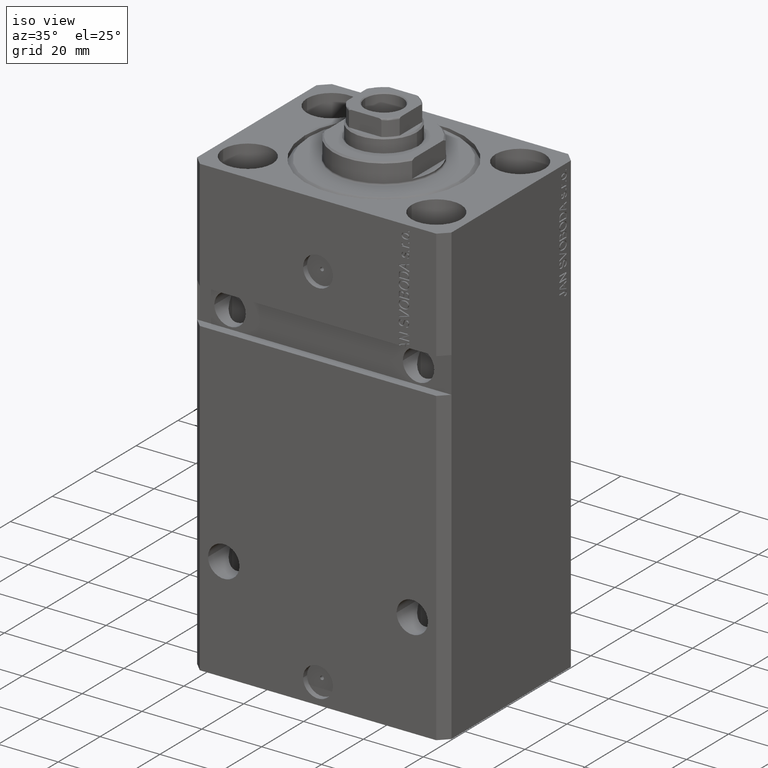
[diagram: clean part render]
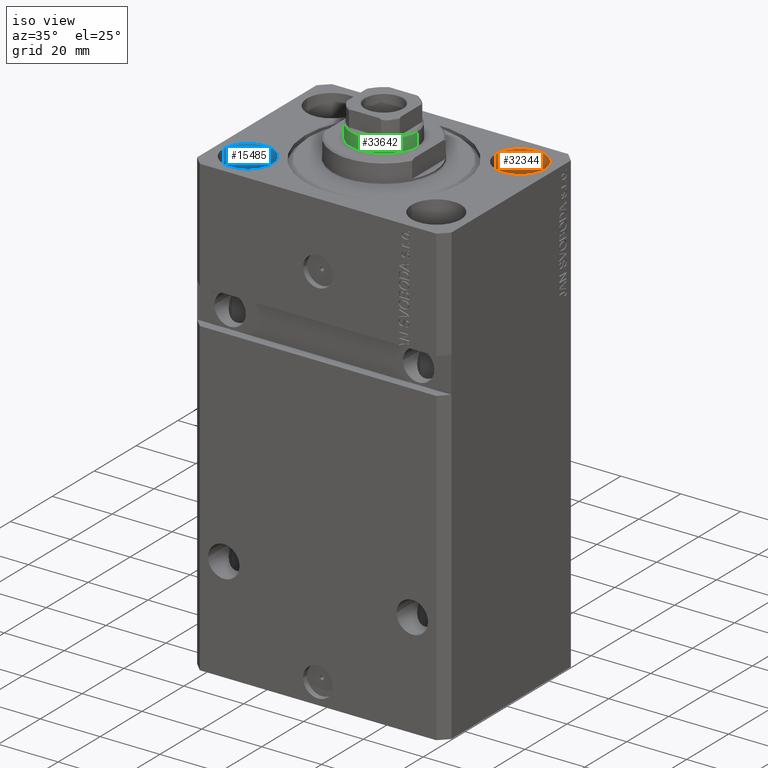
[diagram: same view with three faces highlighted in distinct colors, each labeled with its STEP entity id]
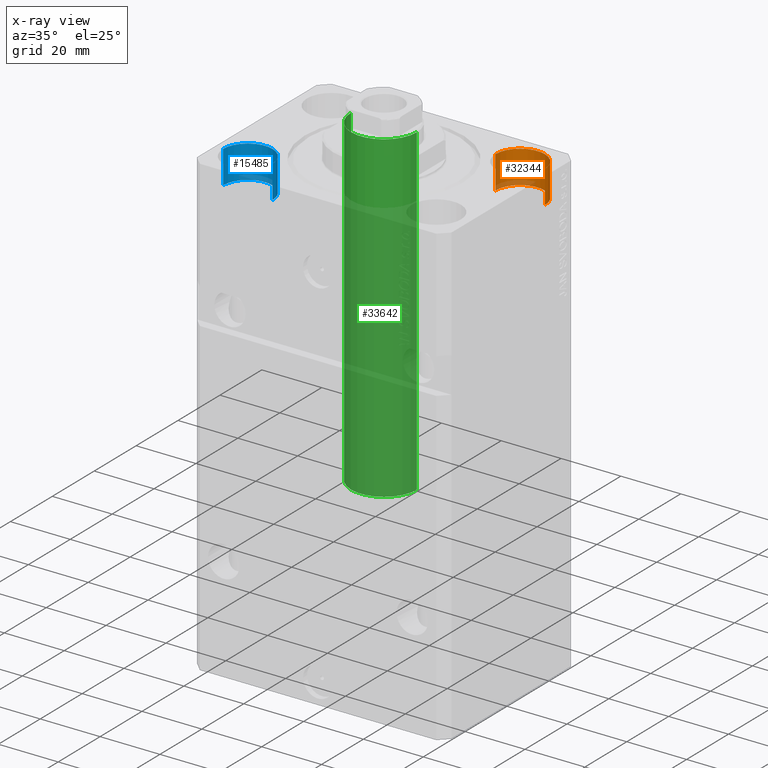
[diagram: x-ray of the same camera — body ghosted, the three highlighted faces saturated]
A machine part, iso view with three faces highlighted in distinct colors.
The next image is the same camera in x-ray (body ghosted, the three faces saturated) — at least one of them is partly hidden behind the body in this view.
Their STEP definitions:

[orange] entity #32344 — the highlighted cylindrical surface (edge-blend (fillet) strip) has radius 8.25 mm, axis along (0, 0, 1).
#1764 = CARTESIAN_POINT ( 'NONE',  ( 39.74999999999999289, 20.00000000000001066, -11.00000000000000000 ) ) ;
#2096 = CARTESIAN_POINT ( 'NONE',  ( 39.74999999999999289, 20.00000000000001066, 0.000000000000000000 ) ) ;
#2126 = VERTEX_POINT ( 'NONE', #22906 ) ;
#2807 = CARTESIAN_POINT ( 'NONE',  ( 23.25000000000000355, 20.00000000000001066, -11.00000000000000000 ) ) ;
#7466 = EDGE_LOOP ( 'NONE', ( #39715, #12869, #45258, #31692 ) ) ;
#8332 = DIRECTION ( 'NONE',  ( 0.000000000000000000, 0.000000000000000000, 1.000000000000000000 ) ) ;
#12286 = AXIS2_PLACEMENT_3D ( 'NONE', #23830, #16962, #44697 ) ;
#12869 = ORIENTED_EDGE ( 'NONE', *, *, #13165, .F. ) ;
#13165 = EDGE_CURVE ( 'NONE', #2126, #24020, #39042, .T. ) ;
#13673 = DIRECTION ( 'NONE',  ( 0.000000000000000000, 0.000000000000000000, 1.000000000000000000 ) ) ;
#16804 = DIRECTION ( 'NONE',  ( -0.000000000000000000, -0.000000000000000000, 1.000000000000000000 ) ) ;
#16962 = DIRECTION ( 'NONE',  ( -0.000000000000000000, -0.000000000000000000, 1.000000000000000000 ) ) ;
#18565 = AXIS2_PLACEMENT_3D ( 'NONE', #39725, #8332, #40634 ) ;
#20244 = LINE ( 'NONE', #2807, #41622 ) ;
#21180 = AXIS2_PLACEMENT_3D ( 'NONE', #24204, #13673, #40947 ) ;
#22639 = CARTESIAN_POINT ( 'NONE',  ( 23.25000000000000355, 20.00000000000001066, -11.00000000000000000 ) ) ;
#22906 = CARTESIAN_POINT ( 'NONE',  ( 39.74999999999999289, 20.00000000000001066, -11.00000000000000000 ) ) ;
#23830 = CARTESIAN_POINT ( 'NONE',  ( 31.50000000000000000, 20.00000000000001066, -11.00000000000000000 ) ) ;
#24020 = VERTEX_POINT ( 'NONE', #22639 ) ;
#24204 = CARTESIAN_POINT ( 'NONE',  ( 31.50000000000000000, 20.00000000000001066, 0.000000000000000000 ) ) ;
#30014 = EDGE_CURVE ( 'NONE', #2126, #40343, #40282, .T. ) ;
#30410 = DIRECTION ( 'NONE',  ( -0.000000000000000000, -0.000000000000000000, 1.000000000000000000 ) ) ;
#31692 = ORIENTED_EDGE ( 'NONE', *, *, #36211, .T. ) ;
#32344 = ADVANCED_FACE ( 'NONE', ( #41253 ), #38262, .F. ) ;
#35793 = CIRCLE ( 'NONE', #21180, 8.249999999999992895 ) ;
#36211 = EDGE_CURVE ( 'NONE', #40343, #38923, #35793, .T. ) ;
#36643 = CARTESIAN_POINT ( 'NONE',  ( 23.25000000000000355, 20.00000000000001066, 0.000000000000000000 ) ) ;
#38262 = CYLINDRICAL_SURFACE ( 'NONE', #12286, 8.249999999999992895 ) ;
#38432 = EDGE_CURVE ( 'NONE', #24020, #38923, #20244, .T. ) ;
#38923 = VERTEX_POINT ( 'NONE', #36643 ) ;
#39042 = CIRCLE ( 'NONE', #18565, 8.249999999999992895 ) ;
#39715 = ORIENTED_EDGE ( 'NONE', *, *, #38432, .F. ) ;
#39725 = CARTESIAN_POINT ( 'NONE',  ( 31.50000000000000000, 20.00000000000001066, -11.00000000000000000 ) ) ;
#40282 = LINE ( 'NONE', #1764, #45132 ) ;
#40343 = VERTEX_POINT ( 'NONE', #2096 ) ;
#40634 = DIRECTION ( 'NONE',  ( 1.000000000000000000, 0.000000000000000000, 0.000000000000000000 ) ) ;
#40947 = DIRECTION ( 'NONE',  ( 1.000000000000000000, 0.000000000000000000, 0.000000000000000000 ) ) ;
#41253 = FACE_OUTER_BOUND ( 'NONE', #7466, .T. ) ;
#41622 = VECTOR ( 'NONE', #16804, 1000.000000000000000 ) ;
#44697 = DIRECTION ( 'NONE',  ( 1.000000000000000000, 0.000000000000000000, 0.000000000000000000 ) ) ;
#45132 = VECTOR ( 'NONE', #30410, 1000.000000000000000 ) ;
#45258 = ORIENTED_EDGE ( 'NONE', *, *, #30014, .T. ) ;

[blue] entity #15485 — the highlighted cylindrical surface (edge-blend (fillet) strip) has radius 8.25 mm, axis along (0, 0, 1).
#34 = VERTEX_POINT ( 'NONE', #33440 ) ;
#1357 = VERTEX_POINT ( 'NONE', #5407 ) ;
#2800 = VERTEX_POINT ( 'NONE', #21615 ) ;
#3351 = DIRECTION ( 'NONE',  ( 0.000000000000000000, 0.000000000000000000, 1.000000000000000000 ) ) ;
#3471 = EDGE_CURVE ( 'NONE', #34, #1357, #5180, .T. ) ;
#3953 = DIRECTION ( 'NONE',  ( 1.000000000000000000, 0.000000000000000000, 0.000000000000000000 ) ) ;
#3984 = EDGE_CURVE ( 'NONE', #33781, #2800, #13176, .T. ) ;
#5180 = CIRCLE ( 'NONE', #24871, 8.250000000000000000 ) ;
#5407 = CARTESIAN_POINT ( 'NONE',  ( -39.75000000000000000, -20.00000000000000000, 0.000000000000000000 ) ) ;
#10965 = CARTESIAN_POINT ( 'NONE',  ( -39.75000000000000000, -20.00000000000000000, -11.00000000000000000 ) ) ;
#11416 = DIRECTION ( 'NONE',  ( -0.000000000000000000, -0.000000000000000000, 1.000000000000000000 ) ) ;
#11519 = DIRECTION ( 'NONE',  ( -0.000000000000000000, -0.000000000000000000, 1.000000000000000000 ) ) ;
#13176 = CIRCLE ( 'NONE', #16087, 8.250000000000000000 ) ;
#14415 = LINE ( 'NONE', #10965, #19391 ) ;
#15187 = CARTESIAN_POINT ( 'NONE',  ( -31.50000000000000000, -20.00000000000000000, -11.00000000000000000 ) ) ;
#15485 = ADVANCED_FACE ( 'NONE', ( #32146 ), #25493, .F. ) ;
#16087 = AXIS2_PLACEMENT_3D ( 'NONE', #41193, #3351, #45318 ) ;
#16557 = EDGE_LOOP ( 'NONE', ( #18608, #33638, #44570, #22971 ) ) ;
#17055 = CARTESIAN_POINT ( 'NONE',  ( -31.50000000000000000, -20.00000000000000000, 0.000000000000000000 ) ) ;
#17892 = LINE ( 'NONE', #42627, #18949 ) ;
#18119 = DIRECTION ( 'NONE',  ( -0.000000000000000000, -0.000000000000000000, 1.000000000000000000 ) ) ;
#18608 = ORIENTED_EDGE ( 'NONE', *, *, #24680, .F. ) ;
#18949 = VECTOR ( 'NONE', #18119, 1000.000000000000000 ) ;
#19391 = VECTOR ( 'NONE', #11416, 1000.000000000000000 ) ;
#21615 = CARTESIAN_POINT ( 'NONE',  ( -39.75000000000000000, -20.00000000000000000, -11.00000000000000000 ) ) ;
#22971 = ORIENTED_EDGE ( 'NONE', *, *, #3471, .T. ) ;
#24148 = DIRECTION ( 'NONE',  ( 0.000000000000000000, 0.000000000000000000, 1.000000000000000000 ) ) ;
#24680 = EDGE_CURVE ( 'NONE', #2800, #1357, #14415, .T. ) ;
#24871 = AXIS2_PLACEMENT_3D ( 'NONE', #17055, #24148, #38131 ) ;
#25493 = CYLINDRICAL_SURFACE ( 'NONE', #43374, 8.250000000000000000 ) ;
#32146 = FACE_OUTER_BOUND ( 'NONE', #16557, .T. ) ;
#33440 = CARTESIAN_POINT ( 'NONE',  ( -23.25000000000000000, -20.00000000000000000, 0.000000000000000000 ) ) ;
#33638 = ORIENTED_EDGE ( 'NONE', *, *, #3984, .F. ) ;
#33781 = VERTEX_POINT ( 'NONE', #37820 ) ;
#37820 = CARTESIAN_POINT ( 'NONE',  ( -23.25000000000000000, -20.00000000000000000, -11.00000000000000000 ) ) ;
#38131 = DIRECTION ( 'NONE',  ( 1.000000000000000000, 0.000000000000000000, 0.000000000000000000 ) ) ;
#39681 = EDGE_CURVE ( 'NONE', #33781, #34, #17892, .T. ) ;
#41193 = CARTESIAN_POINT ( 'NONE',  ( -31.50000000000000000, -20.00000000000000000, -11.00000000000000000 ) ) ;
#42627 = CARTESIAN_POINT ( 'NONE',  ( -23.25000000000000000, -20.00000000000000000, -11.00000000000000000 ) ) ;
#43374 = AXIS2_PLACEMENT_3D ( 'NONE', #15187, #11519, #3953 ) ;
#44570 = ORIENTED_EDGE ( 'NONE', *, *, #39681, .T. ) ;
#45318 = DIRECTION ( 'NONE',  ( 1.000000000000000000, 0.000000000000000000, 0.000000000000000000 ) ) ;

[green] entity #33642 — the highlighted cylindrical surface (partial cylindrical patch) has radius 11 mm, axis along (-0, -0, -1).
#294 = CARTESIAN_POINT ( 'NONE',  ( 11.00000000000000000, 1.347111479062088405E-15, 44.60000000000000142 ) ) ;
#2705 = DIRECTION ( 'NONE',  ( 0.000000000000000000, 0.000000000000000000, -1.000000000000000000 ) ) ;
#2916 = CARTESIAN_POINT ( 'NONE',  ( 11.00000000000000000, 1.347111479062088405E-15, 153.1000000000000227 ) ) ;
#4021 = CARTESIAN_POINT ( 'NONE',  ( 0.000000000000000000, 0.000000000000000000, 44.60000000000000142 ) ) ;
#4356 = CARTESIAN_POINT ( 'NONE',  ( 11.00000000000000000, 1.347111479062088405E-15, 152.6000000000000512 ) ) ;
#5946 = EDGE_CURVE ( 'NONE', #29673, #45169, #20129, .T. ) ;
#7463 = ORIENTED_EDGE ( 'NONE', *, *, #40362, .T. ) ;
#8395 = CYLINDRICAL_SURFACE ( 'NONE', #30624, 11.00000000000000000 ) ;
#9639 = ORIENTED_EDGE ( 'NONE', *, *, #23245, .T. ) ;
#11306 = ORIENTED_EDGE ( 'NONE', *, *, #30204, .T. ) ;
#12880 = LINE ( 'NONE', #26619, #38763 ) ;
#15069 = DIRECTION ( 'NONE',  ( 1.000000000000000000, 0.000000000000000000, 0.000000000000000000 ) ) ;
#18421 = VERTEX_POINT ( 'NONE', #30821 ) ;
#20129 = LINE ( 'NONE', #2916, #35904 ) ;
#22366 = DIRECTION ( 'NONE',  ( 0.000000000000000000, 0.000000000000000000, 1.000000000000000000 ) ) ;
#23245 = EDGE_CURVE ( 'NONE', #29673, #38297, #36915, .T. ) ;
#23344 = DIRECTION ( 'NONE',  ( -0.000000000000000000, -0.000000000000000000, -1.000000000000000000 ) ) ;
#23890 = CIRCLE ( 'NONE', #31249, 11.00000000000000000 ) ;
#26039 = DIRECTION ( 'NONE',  ( -0.000000000000000000, -0.000000000000000000, -1.000000000000000000 ) ) ;
#26619 = CARTESIAN_POINT ( 'NONE',  ( -11.00000000000000000, 0.000000000000000000, 153.1000000000000227 ) ) ;
#29579 = AXIS2_PLACEMENT_3D ( 'NONE', #34120, #2705, #15069 ) ;
#29673 = VERTEX_POINT ( 'NONE', #4356 ) ;
#30204 = EDGE_CURVE ( 'NONE', #18421, #45169, #23890, .T. ) ;
#30624 = AXIS2_PLACEMENT_3D ( 'NONE', #39566, #26039, #43917 ) ;
#30821 = CARTESIAN_POINT ( 'NONE',  ( -11.00000000000000000, 0.000000000000000000, 44.60000000000000142 ) ) ;
#31249 = AXIS2_PLACEMENT_3D ( 'NONE', #4021, #22366, #35880 ) ;
#33286 = DIRECTION ( 'NONE',  ( -0.000000000000000000, -0.000000000000000000, -1.000000000000000000 ) ) ;
#33642 = ADVANCED_FACE ( 'NONE', ( #36577 ), #8395, .T. ) ;
#34120 = CARTESIAN_POINT ( 'NONE',  ( 0.000000000000000000, 0.000000000000000000, 152.6000000000000512 ) ) ;
#35880 = DIRECTION ( 'NONE',  ( 1.000000000000000000, 0.000000000000000000, 0.000000000000000000 ) ) ;
#35904 = VECTOR ( 'NONE', #23344, 1000.000000000000000 ) ;
#36577 = FACE_OUTER_BOUND ( 'NONE', #40872, .T. ) ;
#36915 = CIRCLE ( 'NONE', #29579, 11.00000000000000000 ) ;
#38297 = VERTEX_POINT ( 'NONE', #39736 ) ;
#38763 = VECTOR ( 'NONE', #33286, 1000.000000000000000 ) ;
#39566 = CARTESIAN_POINT ( 'NONE',  ( 0.000000000000000000, 0.000000000000000000, 153.1000000000000227 ) ) ;
#39736 = CARTESIAN_POINT ( 'NONE',  ( -11.00000000000000000, 0.000000000000000000, 152.6000000000000512 ) ) ;
#40362 = EDGE_CURVE ( 'NONE', #38297, #18421, #12880, .T. ) ;
#40872 = EDGE_LOOP ( 'NONE', ( #44714, #9639, #7463, #11306 ) ) ;
#43917 = DIRECTION ( 'NONE',  ( -1.000000000000000000, 0.000000000000000000, 0.000000000000000000 ) ) ;
#44714 = ORIENTED_EDGE ( 'NONE', *, *, #5946, .F. ) ;
#45169 = VERTEX_POINT ( 'NONE', #294 ) ;